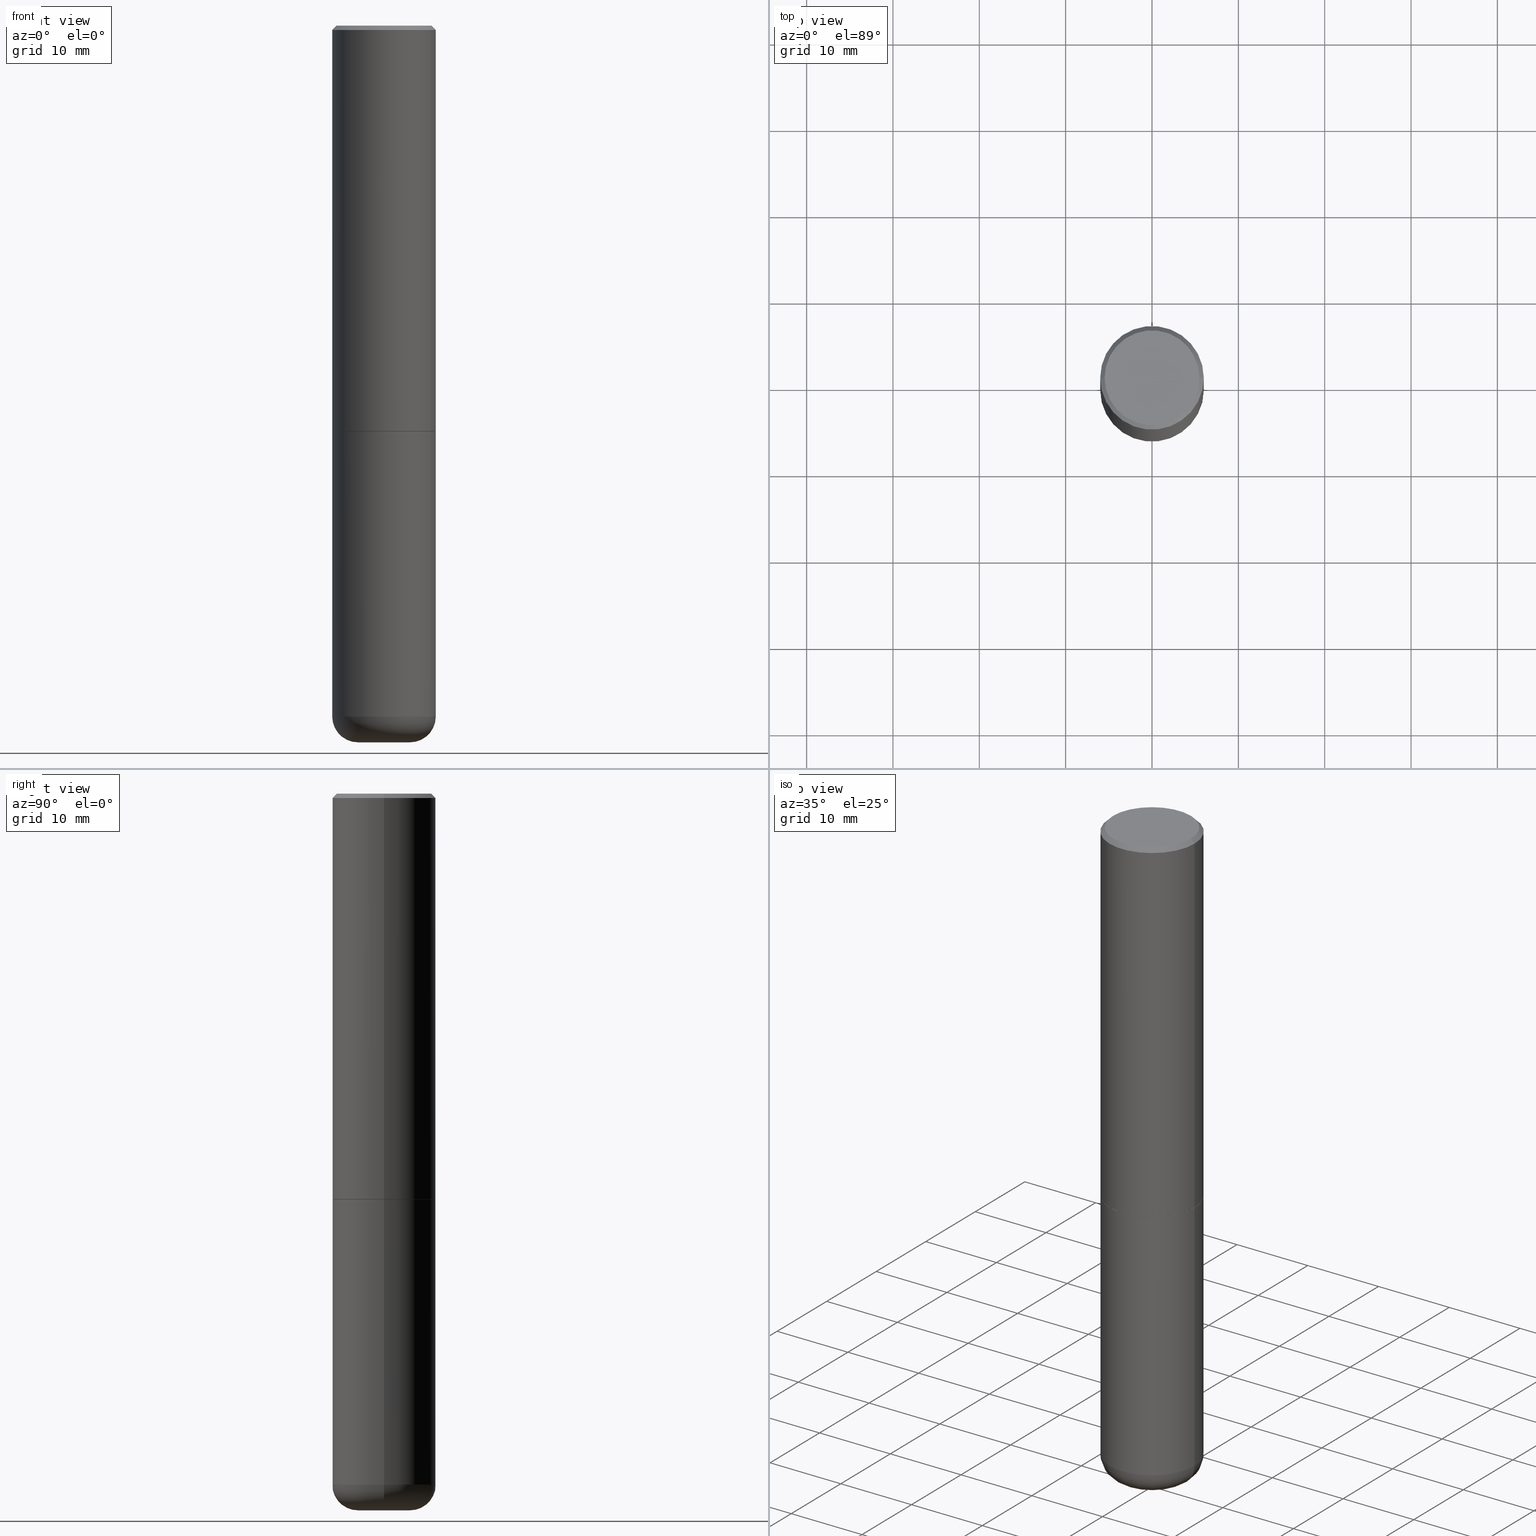
[diagram: canonical four-view strip — front | top / right | iso, engineering-drawing reading convention]
A machine part, canonical four-view strip (front | top / right | iso — engineering-drawing reading convention). The complete STEP part file that produces these views, byte-faithful:
ISO-10303-21;
HEADER;
FILE_DESCRIPTION (( 'STEP AP203' ),
    '1' );
FILE_NAME ('74614.STEP',
    '2024-03-06T15:40:44',
    ( '' ),
    ( '' ),
    'SwSTEP 2.0',
    'SolidWorks 2023',
    '' );
FILE_SCHEMA (( 'CONFIG_CONTROL_DESIGN' ));
ENDSEC;

DATA;
#1 = PERSON_AND_ORGANIZATION ( #302, #59 ) ;
#2 = DIRECTION ( 'NONE',  ( -2.445468806185136877E-29, 3.491481338843145188E-15, 1.000000000000000000 ) ) ;
#3 = CIRCLE ( 'NONE', #224, 0.2361999999999999655 ) ;
#4 = PERSON_AND_ORGANIZATION ( #302, #59 ) ;
#5 = DIRECTION ( 'NONE',  ( 1.000000000000000000, -6.982962677686265922E-15, 4.876176775795935793E-29 ) ) ;
#6 = CC_DESIGN_DATE_AND_TIME_ASSIGNMENT ( #110, #107, ( #254 ) ) ;
#7 = DIRECTION ( 'NONE',  ( -2.445468806185136597E-29, 3.491481338843145583E-15, 1.000000000000000000 ) ) ;
#8 = CARTESIAN_POINT ( 'NONE',  ( -0.2362000000000000766, 1.678301941865357183E-15, -1.161852468318209177E-29 ) ) ;
#9 = ORIENTED_EDGE ( 'NONE', *, *, #220, .T. ) ;
#10 = DIRECTION ( 'NONE',  ( -2.445468806185136597E-29, 3.491481338843145583E-15, 1.000000000000000000 ) ) ;
#11 = SHAPE_DEFINITION_REPRESENTATION ( #369, #292 ) ;
#12 = EDGE_CURVE ( 'NONE', #249, #218, #371, .T. ) ;
#13 = AXIS2_PLACEMENT_3D ( 'NONE', #237, #139, #263 ) ;
#14 = EDGE_CURVE ( 'NONE', #158, #411, #153, .T. ) ;
#15 = UNCERTAINTY_MEASURE_WITH_UNIT (LENGTH_MEASURE( 1.000000000000000082E-05 ), #131, 'distance_accuracy_value', 'NONE');
#16 = AXIS2_PLACEMENT_3D ( 'NONE', #246, #193, #321 ) ;
#17 = CC_DESIGN_APPROVAL ( #370, ( #333 ) ) ;
#18 = APPROVAL_PERSON_ORGANIZATION ( #77, #309, #44 ) ;
#19 = EDGE_CURVE ( 'NONE', #411, #158, #147, .T. ) ;
#20 = DIRECTION ( 'NONE',  ( 1.000000000000000000, -6.982962677686266711E-15, 4.876176775795935793E-29 ) ) ;
#21 = LINE ( 'NONE', #400, #85 ) ;
#22 = EDGE_LOOP ( 'NONE', ( #97, #28, #58, #245 ) ) ;
#23 = DIRECTION ( 'NONE',  ( 0.7071067811865459074, -7.319954787623251312E-15, -0.7071067811865492381 ) ) ;
#24 = ORIENTED_EDGE ( 'NONE', *, *, #52, .F. ) ;
#25 = AXIS2_PLACEMENT_3D ( 'NONE', #45, #238, #197 ) ;
#26 = AXIS2_PLACEMENT_3D ( 'NONE', #389, #230, #42 ) ;
#27 = CIRCLE ( 'NONE', #365, 0.2361999999999999933 ) ;
#28 = ORIENTED_EDGE ( 'NONE', *, *, #215, .T. ) ;
#29 = CARTESIAN_POINT ( 'NONE',  ( 0.2162000000000001143, -1.586759460484352382E-15, -1.408609121733027408E-16 ) ) ;
#30 = VERTEX_POINT ( 'NONE', #416 ) ;
#31 = ADVANCED_FACE ( 'NONE', ( #33 ), #413, .T. ) ;
#32 = COORDINATED_UNIVERSAL_TIME_OFFSET ( 5, 0, .BEHIND. ) ;
#33 = FACE_OUTER_BOUND ( 'NONE', #22, .T. ) ;
#34 = DIRECTION ( 'NONE',  ( 1.000000000000000000, -6.982962677686272233E-15, 0.000000000000000000 ) ) ;
#35 = PERSON_AND_ORGANIZATION_ROLE ( 'design_owner' ) ;
#36 = PLANE ( 'NONE',  #258 ) ;
#37 = PERSON_AND_ORGANIZATION_ROLE ( 'design_supplier' ) ;
#38 = FACE_OUTER_BOUND ( 'NONE', #185, .T. ) ;
#39 = ORIENTED_EDGE ( 'NONE', *, *, #156, .F. ) ;
#40 = AXIS2_PLACEMENT_3D ( 'NONE', #306, #54, #20 ) ;
#41 = DESIGN_CONTEXT ( 'detailed design', #313, 'design' ) ;
#42 = DIRECTION ( 'NONE',  ( 1.000000000000000000, -6.982962677686265133E-15, 0.000000000000000000 ) ) ;
#43 = VERTEX_POINT ( 'NONE', #226 ) ;
#44 = APPROVAL_ROLE ( '' ) ;
#45 = CARTESIAN_POINT ( 'NONE',  ( 7.991058417971171713E-29, -1.140911357093774644E-14, -3.267700000000000049 ) ) ;
#46 = CONICAL_SURFACE ( 'NONE', #204, 0.2361999999999999655, 0.7853981633974459475 ) ;
#47 = APPROVAL ( #417, 'UNSPECIFIED' ) ;
#48 = CARTESIAN_POINT ( 'NONE',  ( 0.000000000000000000, 0.000000000000000000, 0.000000000000000000 ) ) ;
#49 = EDGE_LOOP ( 'NONE', ( #119, #296, #9, #73 ) ) ;
#50 = AXIS2_PLACEMENT_3D ( 'NONE', #319, #114, #282 ) ;
#51 = FACE_OUTER_BOUND ( 'NONE', #261, .T. ) ;
#52 = EDGE_CURVE ( 'NONE', #303, #269, #56, .T. ) ;
#53 = VERTEX_POINT ( 'NONE', #192 ) ;
#54 = DIRECTION ( 'NONE',  ( -2.445468806185136597E-29, 3.491481338843145583E-15, 1.000000000000000000 ) ) ;
#55 = ORIENTED_EDGE ( 'NONE', *, *, #176, .T. ) ;
#56 = LINE ( 'NONE', #351, #74 ) ;
#57 = CYLINDRICAL_SURFACE ( 'NONE', #40, 0.2362000000000000766 ) ;
#58 = ORIENTED_EDGE ( 'NONE', *, *, #86, .F. ) ;
#59 = ORGANIZATION ( 'UNSPECIFIED', 'UNSPECIFIED', '' ) ;
#60 = ORIENTED_EDGE ( 'NONE', *, *, #250, .T. ) ;
#61 = DIRECTION ( 'NONE',  ( 0.7071067811864992780, -2.468850131081751401E-15, 0.7071067811865957564 ) ) ;
#62 = CC_DESIGN_PERSON_AND_ORGANIZATION_ASSIGNMENT ( #1, #135, ( #333 ) ) ;
#63 =( NAMED_UNIT ( * ) SI_UNIT ( $, .STERADIAN. ) SOLID_ANGLE_UNIT ( ) );
#64 = DIRECTION ( 'NONE',  ( -2.445468806185136597E-29, 3.491481338843145583E-15, 1.000000000000000000 ) ) ;
#65 = CLOSED_SHELL ( 'NONE', ( #307, #346, #368, #90, #328, #163, #199, #273 ) ) ;
#66 =( GEOMETRIC_REPRESENTATION_CONTEXT ( 3 ) GLOBAL_UNCERTAINTY_ASSIGNED_CONTEXT ( ( #15 ) ) GLOBAL_UNIT_ASSIGNED_CONTEXT ( ( #131, #386, #63 ) ) REPRESENTATION_CONTEXT ( 'NONE', 'WORKASPACE' ) );
#67 = CALENDAR_DATE ( 2024, 6, 3 ) ;
#68 = PLANE ( 'NONE',  #25 ) ;
#69 = ADVANCED_FACE ( 'NONE', ( #288 ), #99, .T. ) ;
#70 = FACE_OUTER_BOUND ( 'NONE', #350, .T. ) ;
#71 = CARTESIAN_POINT ( 'NONE',  ( -0.2162000000000001143, 1.544631344304201972E-15, -1.408609121733242372E-16 ) ) ;
#72 = DIMENSIONAL_EXPONENTS ( 1.000000000000000000, 0.000000000000000000, 0.000000000000000000, 0.000000000000000000, 0.000000000000000000, 0.000000000000000000, 0.000000000000000000 ) ;
#73 = ORIENTED_EDGE ( 'NONE', *, *, #14, .F. ) ;
#74 = VECTOR ( 'NONE', #61, 39.37007874015748143 ) ;
#75 = AXIS2_PLACEMENT_3D ( 'NONE', #334, #10, #166 ) ;
#76 = FACE_OUTER_BOUND ( 'NONE', #314, .T. ) ;
#77 = PERSON_AND_ORGANIZATION ( #302, #59 ) ;
#78 = EDGE_CURVE ( 'NONE', #167, #303, #208, .T. ) ;
#79 = CIRCLE ( 'NONE', #212, 0.1181000000000000105 ) ;
#80 = CIRCLE ( 'NONE', #397, 0.2362000000000002153 ) ;
#81 = CC_DESIGN_PERSON_AND_ORGANIZATION_ASSIGNMENT ( #284, #287, ( #210 ) ) ;
#82 = PRODUCT ( '74614', '74614', '', ( #202 ) ) ;
#83 = CARTESIAN_POINT ( 'NONE',  ( 4.890937612370295054E-31, -6.982962677686322424E-17, -0.02000000000000009062 ) ) ;
#84 = CARTESIAN_POINT ( 'NONE',  ( 4.890937612370295054E-31, -6.982962677686322424E-17, -0.02000000000000009062 ) ) ;
#85 = VECTOR ( 'NONE', #23, 39.37007874015748143 ) ;
#86 = EDGE_CURVE ( 'NONE', #30, #53, #211, .T. ) ;
#87 = CARTESIAN_POINT ( 'NONE',  ( -0.2351999999999999924, -4.789440554887602979E-15, -1.850400000000000489 ) ) ;
#88 = ORIENTED_EDGE ( 'NONE', *, *, #156, .T. ) ;
#89 = VERTEX_POINT ( 'NONE', #297 ) ;
#90 = ADVANCED_FACE ( 'NONE', ( #143 ), #322, .T. ) ;
#91 = DIRECTION ( 'NONE',  ( 1.000000000000000000, -6.982962677686266711E-15, 0.000000000000000000 ) ) ;
#92 = ORIENTED_EDGE ( 'NONE', *, *, #12, .F. ) ;
#93 = ORIENTED_EDGE ( 'NONE', *, *, #14, .T. ) ;
#94 = AXIS2_PLACEMENT_3D ( 'NONE', #118, #248, #91 ) ;
#95 = ORIENTED_EDGE ( 'NONE', *, *, #356, .T. ) ;
#96 = APPROVAL_STATUS ( 'not_yet_approved' ) ;
#97 = ORIENTED_EDGE ( 'NONE', *, *, #182, .T. ) ;
#98 = APPROVAL_ROLE ( '' ) ;
#99 = CYLINDRICAL_SURFACE ( 'NONE', #304, 0.2361999999999999933 ) ;
#100 = ORIENTED_EDGE ( 'NONE', *, *, #182, .F. ) ;
#101 = VECTOR ( 'NONE', #375, 39.37007874015748143 ) ;
#102 = DIRECTION ( 'NONE',  ( -2.445468806185136877E-29, 3.491481338843145188E-15, 1.000000000000000000 ) ) ;
#103 = ORIENTED_EDGE ( 'NONE', *, *, #86, .T. ) ;
#104 = DIRECTION ( 'NONE',  ( -2.445468806185136597E-29, 3.491481338843145583E-15, 1.000000000000000000 ) ) ;
#105 = DIRECTION ( 'NONE',  ( 2.445468806185136597E-29, -3.491481338843145583E-15, -1.000000000000000000 ) ) ;
#106 = AXIS2_PLACEMENT_3D ( 'NONE', #159, #251, #190 ) ;
#107 = DATE_TIME_ROLE ( 'classification_date' ) ;
#108 = DIRECTION ( 'NONE',  ( 2.438088387897960049E-29, -3.491481338843145188E-15, -1.000000000000000000 ) ) ;
#109 = ORIENTED_EDGE ( 'NONE', *, *, #243, .T. ) ;
#110 = DATE_AND_TIME ( #141, #146 ) ;
#111 = ORIENTED_EDGE ( 'NONE', *, *, #215, .F. ) ;
#112 = CARTESIAN_POINT ( 'NONE',  ( 0.2362000000000002153, -8.106521372526011094E-15, -1.849400000000000155 ) ) ;
#113 = ADVANCED_FACE ( 'NONE', ( #38 ), #68, .T. ) ;
#114 = DIRECTION ( 'NONE',  ( -2.445468806185136597E-29, 3.491481338843145583E-15, 1.000000000000000000 ) ) ;
#115 = AXIS2_PLACEMENT_3D ( 'NONE', #281, #274, #402 ) ;
#116 = ORIENTED_EDGE ( 'NONE', *, *, #339, .T. ) ;
#117 = CONICAL_SURFACE ( 'NONE', #50, 0.2351999999999999924, 0.7853981633973801113 ) ;
#118 = CARTESIAN_POINT ( 'NONE',  ( 4.522650010158792351E-29, -6.457145588056513780E-15, -1.849400000000000155 ) ) ;
#119 = ORIENTED_EDGE ( 'NONE', *, *, #356, .F. ) ;
#120 = DIRECTION ( 'NONE',  ( -2.445468806185136597E-29, 3.491481338843145583E-15, 1.000000000000000000 ) ) ;
#121 = CARTESIAN_POINT ( 'NONE',  ( 0.2361999999999999655, -1.690279253850498771E-15, -0.02000000000000009062 ) ) ;
#122 = ORIENTED_EDGE ( 'NONE', *, *, #366, .F. ) ;
#123 = VERTEX_POINT ( 'NONE', #329 ) ;
#124 = DIRECTION ( 'NONE',  ( 1.000000000000000000, -6.982962677686266711E-15, 4.876176775795936353E-29 ) ) ;
#125 = CARTESIAN_POINT ( 'NONE',  ( 0.1180999999999999966, -1.182145751705512057E-14, -3.149600000000000399 ) ) ;
#126 = AXIS2_PLACEMENT_3D ( 'NONE', #217, #349, #180 ) ;
#127 = ADVANCED_FACE ( 'NONE', ( #70 ), #36, .F. ) ;
#128 = CARTESIAN_POINT ( 'NONE',  ( 0.2361999999999999933, -8.110012853864854101E-15, -1.850400000000000267 ) ) ;
#129 = CARTESIAN_POINT ( 'NONE',  ( 7.702248551960706711E-29, -1.099676962482037231E-14, -3.149600000000000399 ) ) ;
#130 = EDGE_CURVE ( 'NONE', #123, #277, #3, .T. ) ;
#131 =( CONVERSION_BASED_UNIT ( 'INCH', #327 ) LENGTH_UNIT ( ) NAMED_UNIT ( #72 ) );
#132 = EDGE_CURVE ( 'NONE', #303, #167, #187, .T. ) ;
#133 = DIRECTION ( 'NONE',  ( -2.445468806185136597E-29, 3.491481338843145583E-15, 1.000000000000000000 ) ) ;
#134 = CC_DESIGN_PERSON_AND_ORGANIZATION_ASSIGNMENT ( #332, #138, ( #254 ) ) ;
#135 = PERSON_AND_ORGANIZATION_ROLE ( 'creator' ) ;
#136 = DIRECTION ( 'NONE',  ( 1.000000000000000000, -6.982962677686268288E-15, 0.000000000000000000 ) ) ;
#137 = ORIENTED_EDGE ( 'NONE', *, *, #19, .T. ) ;
#138 = PERSON_AND_ORGANIZATION_ROLE ( 'classification_officer' ) ;
#139 = DIRECTION ( 'NONE',  ( 7.105427357601001859E-15, 1.000000000000000000, -3.491481338843145583E-15 ) ) ;
#140 = FACE_OUTER_BOUND ( 'NONE', #286, .T. ) ;
#141 = CALENDAR_DATE ( 2024, 6, 3 ) ;
#142 = PRODUCT_RELATED_PRODUCT_CATEGORY ( 'detail', '', ( #82 ) ) ;
#143 = FACE_OUTER_BOUND ( 'NONE', #234, .T. ) ;
#144 = AXIS2_PLACEMENT_3D ( 'NONE', #355, #105, #299 ) ;
#145 = AXIS2_PLACEMENT_3D ( 'NONE', #183, #317, #278 ) ;
#146 = LOCAL_TIME ( 10, 40, 44.00000000000000000, #293 ) ;
#147 = CIRCLE ( 'NONE', #253, 0.2361999999999999933 ) ;
#148 = AXIS2_PLACEMENT_3D ( 'NONE', #362, #200, #5 ) ;
#149 = CARTESIAN_POINT ( 'NONE',  ( 0.2351999999999999924, -8.103029891187169665E-15, -1.850400000000000489 ) ) ;
#150 = FACE_OUTER_BOUND ( 'NONE', #318, .T. ) ;
#151 = EDGE_LOOP ( 'NONE', ( #103, #95, #188, #405 ) ) ;
#152 = CARTESIAN_POINT ( 'NONE',  ( 7.702248551960706711E-29, -1.099676962482037231E-14, -3.149600000000000399 ) ) ;
#153 = CIRCLE ( 'NONE', #115, 0.2361999999999999933 ) ;
#154 = EDGE_LOOP ( 'NONE', ( #222, #55, #310, #39 ) ) ;
#155 = CIRCLE ( 'NONE', #178, 0.1181000000000000105 ) ;
#156 = EDGE_CURVE ( 'NONE', #269, #277, #291, .T. ) ;
#157 = CARTESIAN_POINT ( 'NONE',  ( 4.522650010158792351E-29, -6.457145588056513780E-15, -1.849400000000000155 ) ) ;
#158 = VERTEX_POINT ( 'NONE', #394 ) ;
#159 = CARTESIAN_POINT ( 'NONE',  ( 1.509716530915771507E-15, 0.2162000000000001143, -8.252887215445451602E-16 ) ) ;
#160 = DATE_AND_TIME ( #67, #393 ) ;
#161 = CC_DESIGN_APPROVAL ( #47, ( #210 ) ) ;
#162 = APPLICATION_PROTOCOL_DEFINITION ( 'international standard', 'config_control_design', 1994, #279 ) ;
#163 = ADVANCED_FACE ( 'NONE', ( #140 ), #388, .T. ) ;
#164 = DIRECTION ( 'NONE',  ( -1.000000000000000000, 6.982962677686265922E-15, -4.876176775795935793E-29 ) ) ;
#165 = APPROVAL_DATE_TIME ( #323, #370 ) ;
#166 = DIRECTION ( 'NONE',  ( 1.000000000000000000, -6.982962677686268288E-15, 0.000000000000000000 ) ) ;
#167 = VERTEX_POINT ( 'NONE', #295 ) ;
#168 = APPLICATION_PROTOCOL_DEFINITION ( 'international standard', 'config_control_design', 1994, #313 ) ;
#169 = DIRECTION ( 'NONE',  ( 1.000000000000000000, -6.982962677686266711E-15, 4.876176775795936353E-29 ) ) ;
#170 = APPROVAL_PERSON_ORGANIZATION ( #4, #47, #353 ) ;
#171 = ORIENTED_EDGE ( 'NONE', *, *, #409, .F. ) ;
#172 = DIRECTION ( 'NONE',  ( 1.000000000000000000, -6.982962677686266711E-15, 0.000000000000000000 ) ) ;
#173 = ORIENTED_EDGE ( 'NONE', *, *, #374, .F. ) ;
#174 = CALENDAR_DATE ( 2024, 6, 3 ) ;
#175 = CARTESIAN_POINT ( 'NONE',  ( 0.2362000000000000766, -1.649375784469496722E-15, 1.151752954443000368E-29 ) ) ;
#176 = EDGE_CURVE ( 'NONE', #272, #123, #259, .T. ) ;
#177 = DIRECTION ( 'NONE',  ( -6.982962677686266711E-15, -1.000000000000000000, 3.491481338843145583E-15 ) ) ;
#178 = AXIS2_PLACEMENT_3D ( 'NONE', #233, #265, #195 ) ;
#179 = AXIS2_PLACEMENT_3D ( 'NONE', #125, #177, #360 ) ;
#180 = DIRECTION ( 'NONE',  ( 1.000000000000000000, -6.982962677686266711E-15, 4.876176775795935793E-29 ) ) ;
#181 = LOCAL_TIME ( 10, 40, 44.00000000000000000, #240 ) ;
#182 = EDGE_CURVE ( 'NONE', #89, #43, #155, .T. ) ;
#183 = CARTESIAN_POINT ( 'NONE',  ( 7.702248551960706711E-29, -1.099676962482037231E-14, -3.149600000000000399 ) ) ;
#184 = CARTESIAN_POINT ( 'NONE',  ( -0.2361999999999999933, 1.678301941865356591E-15, -1.161852468318208757E-29 ) ) ;
#185 = EDGE_LOOP ( 'NONE', ( #100, #315 ) ) ;
#186 = DIRECTION ( 'NONE',  ( -2.445468806185136597E-29, 3.491481338843145583E-15, 1.000000000000000000 ) ) ;
#187 = CIRCLE ( 'NONE', #75, 0.2351999999999999924 ) ;
#188 = ORIENTED_EDGE ( 'NONE', *, *, #19, .F. ) ;
#189 = ORIENTED_EDGE ( 'NONE', *, *, #132, .F. ) ;
#190 = DIRECTION ( 'NONE',  ( -1.000000000000000000, 6.982962677686265922E-15, -4.876176775795935793E-29 ) ) ;
#191 = ORIENTED_EDGE ( 'NONE', *, *, #132, .T. ) ;
#192 = CARTESIAN_POINT ( 'NONE',  ( -0.2361999999999999933, -9.318467682955017493E-15, -3.149600000000000399 ) ) ;
#193 = DIRECTION ( 'NONE',  ( -2.445468806185136597E-29, 3.491481338843145583E-15, 1.000000000000000000 ) ) ;
#194 = COORDINATED_UNIVERSAL_TIME_OFFSET ( 5, 0, .BEHIND. ) ;
#195 = DIRECTION ( 'NONE',  ( 1.000000000000000000, -6.982962677686272233E-15, 0.000000000000000000 ) ) ;
#196 = CALENDAR_DATE ( 2024, 6, 3 ) ;
#197 = DIRECTION ( 'NONE',  ( -1.000000000000000000, 6.982962677686265922E-15, -4.876176775795935793E-29 ) ) ;
#198 = CARTESIAN_POINT ( 'NONE',  ( 0.000000000000000000, 0.000000000000000000, 0.000000000000000000 ) ) ;
#199 = ADVANCED_FACE ( 'NONE', ( #76 ), #257, .F. ) ;
#200 = DIRECTION ( 'NONE',  ( -2.438088387897960049E-29, 3.491481338843145188E-15, 1.000000000000000000 ) ) ;
#201 = ORIENTED_EDGE ( 'NONE', *, *, #78, .F. ) ;
#202 = MECHANICAL_CONTEXT ( 'NONE', #279, 'mechanical' ) ;
#203 = LINE ( 'NONE', #264, #414 ) ;
#204 = AXIS2_PLACEMENT_3D ( 'NONE', #84, #213, #308 ) ;
#205 = EDGE_CURVE ( 'NONE', #43, #89, #79, .T. ) ;
#206 = CARTESIAN_POINT ( 'NONE',  ( 7.991058417971171713E-29, -1.140911357093774644E-14, -3.267700000000000049 ) ) ;
#207 = APPROVAL_STATUS ( 'not_yet_approved' ) ;
#208 = CIRCLE ( 'NONE', #283, 0.2351999999999999924 ) ;
#209 = FACE_OUTER_BOUND ( 'NONE', #154, .T. ) ;
#210 = PRODUCT_DEFINITION ( 'UNKNOWN', '', #333, #41 ) ;
#211 = CIRCLE ( 'NONE', #26, 0.2361999999999999933 ) ;
#212 = AXIS2_PLACEMENT_3D ( 'NONE', #206, #64, #34 ) ;
#213 = DIRECTION ( 'NONE',  ( 2.445468806185136597E-29, -3.491481338843145583E-15, -1.000000000000000000 ) ) ;
#214 = CC_DESIGN_APPROVAL ( #309, ( #254 ) ) ;
#215 = EDGE_CURVE ( 'NONE', #43, #53, #372, .T. ) ;
#216 = FACE_OUTER_BOUND ( 'NONE', #390, .T. ) ;
#217 = CARTESIAN_POINT ( 'NONE',  ( 0.000000000000000000, 0.000000000000000000, 0.000000000000000000 ) ) ;
#218 = VERTEX_POINT ( 'NONE', #71 ) ;
#219 = CARTESIAN_POINT ( 'NONE',  ( 4.525095478964977394E-29, -6.460637069395357576E-15, -1.850400000000000267 ) ) ;
#220 = EDGE_CURVE ( 'NONE', #30, #411, #203, .T. ) ;
#221 = FACE_OUTER_BOUND ( 'NONE', #383, .T. ) ;
#222 = ORIENTED_EDGE ( 'NONE', *, *, #395, .T. ) ;
#223 = CYLINDRICAL_SURFACE ( 'NONE', #126, 0.2362000000000000766 ) ;
#224 = AXIS2_PLACEMENT_3D ( 'NONE', #392, #104, #172 ) ;
#225 = EDGE_LOOP ( 'NONE', ( #343, #381, #88, #347 ) ) ;
#226 = CARTESIAN_POINT ( 'NONE',  ( -0.1181000000000000383, -9.944215141480041685E-15, -3.267700000000000049 ) ) ;
#227 = PERSON_AND_ORGANIZATION ( #302, #59 ) ;
#228 = ORIENTED_EDGE ( 'NONE', *, *, #379, .F. ) ;
#229 = APPROVAL_DATE_TIME ( #160, #47 ) ;
#230 = DIRECTION ( 'NONE',  ( -2.445468806185136597E-29, 3.491481338843145583E-15, 1.000000000000000000 ) ) ;
#231 = CIRCLE ( 'NONE', #179, 0.1180999999999999966 ) ;
#232 = PERSON_AND_ORGANIZATION ( #302, #59 ) ;
#233 = CARTESIAN_POINT ( 'NONE',  ( 7.991058417971171713E-29, -1.140911357093774644E-14, -3.267700000000000049 ) ) ;
#234 = EDGE_LOOP ( 'NONE', ( #173, #171, #354, #407 ) ) ;
#235 = SECURITY_CLASSIFICATION_LEVEL ( 'unclassified' ) ;
#236 = CC_DESIGN_PERSON_AND_ORGANIZATION_ASSIGNMENT ( #227, #35, ( #82 ) ) ;
#237 = CARTESIAN_POINT ( 'NONE',  ( -0.1180999999999999966, -1.015761865388769332E-14, -3.149600000000000399 ) ) ;
#238 = DIRECTION ( 'NONE',  ( 2.438088387897960049E-29, -3.491481338843145188E-15, -1.000000000000000000 ) ) ;
#239 = CIRCLE ( 'NONE', #285, 0.2361999999999999655 ) ;
#240 = COORDINATED_UNIVERSAL_TIME_OFFSET ( 5, 0, .BEHIND. ) ;
#241 = CIRCLE ( 'NONE', #94, 0.2362000000000002153 ) ;
#242 = DIRECTION ( 'NONE',  ( -0.7071067811865459074, 2.468850131082239706E-15, -0.7071067811865492381 ) ) ;
#243 = EDGE_CURVE ( 'NONE', #89, #30, #231, .T. ) ;
#244 = DIRECTION ( 'NONE',  ( 1.000000000000000000, -6.982962677686266711E-15, 0.000000000000000000 ) ) ;
#245 = ORIENTED_EDGE ( 'NONE', *, *, #243, .F. ) ;
#246 = CARTESIAN_POINT ( 'NONE',  ( 3.444709667306225463E-45, -4.918132462255475514E-31, -1.408609121733135630E-16 ) ) ;
#247 = ADVANCED_FACE ( 'NONE', ( #216 ), #305, .T. ) ;
#248 = DIRECTION ( 'NONE',  ( -2.445468806185136597E-29, 3.491481338843145583E-15, 1.000000000000000000 ) ) ;
#249 = VERTEX_POINT ( 'NONE', #29 ) ;
#250 = EDGE_CURVE ( 'NONE', #277, #123, #239, .T. ) ;
#251 = DIRECTION ( 'NONE',  ( 2.438088387897960049E-29, -3.491481338843145188E-15, -1.000000000000000000 ) ) ;
#252 = ORIENTED_EDGE ( 'NONE', *, *, #52, .T. ) ;
#253 = AXIS2_PLACEMENT_3D ( 'NONE', #219, #120, #408 ) ;
#254 = SECURITY_CLASSIFICATION ( '', '', #235 ) ;
#255 = COORDINATED_UNIVERSAL_TIME_OFFSET ( 5, 0, .BEHIND. ) ;
#256 = CARTESIAN_POINT ( 'NONE',  ( 3.444709667306225463E-45, -4.918132462255475514E-31, -1.408609121733135630E-16 ) ) ;
#257 = PLANE ( 'NONE',  #148 ) ;
#258 = AXIS2_PLACEMENT_3D ( 'NONE', #391, #108, #164 ) ;
#259 = LINE ( 'NONE', #8, #376 ) ;
#260 = LOCAL_TIME ( 10, 40, 44.00000000000000000, #194 ) ;
#261 = EDGE_LOOP ( 'NONE', ( #92, #320, #60, #122 ) ) ;
#262 = DIRECTION ( 'NONE',  ( 1.000000000000000000, 0.000000000000000000, 0.000000000000000000 ) ) ;
#263 = DIRECTION ( 'NONE',  ( -1.000000000000000000, 7.105427357601005014E-15, 0.000000000000000000 ) ) ;
#264 = CARTESIAN_POINT ( 'NONE',  ( 0.2361999999999999933, -1.649375784469496131E-15, 1.151752954443000088E-29 ) ) ;
#265 = DIRECTION ( 'NONE',  ( -2.445468806185136597E-29, 3.491481338843145583E-15, 1.000000000000000000 ) ) ;
#266 = VECTOR ( 'NONE', #2, 39.37007874015748143 ) ;
#267 = EDGE_CURVE ( 'NONE', #272, #269, #80, .T. ) ;
#268 = AXIS2_PLACEMENT_3D ( 'NONE', #48, #186, #124 ) ;
#269 = VERTEX_POINT ( 'NONE', #112 ) ;
#270 = CARTESIAN_POINT ( 'NONE',  ( -0.2361999999999999655, 1.579546157692632635E-15, -0.02000000000000009062 ) ) ;
#271 = DIRECTION ( 'NONE',  ( -2.445468806185136597E-29, 3.491481338843145583E-15, 1.000000000000000000 ) ) ;
#272 = VERTEX_POINT ( 'NONE', #380 ) ;
#273 = ADVANCED_FACE ( 'NONE', ( #221 ), #406, .F. ) ;
#274 = DIRECTION ( 'NONE',  ( -2.445468806185136597E-29, 3.491481338843145583E-15, 1.000000000000000000 ) ) ;
#275 = AXIS2_PLACEMENT_3D ( 'NONE', #198, #358, #262 ) ;
#276 = DIRECTION ( 'NONE',  ( -2.445468806185136597E-29, 3.491481338843145583E-15, 1.000000000000000000 ) ) ;
#277 = VERTEX_POINT ( 'NONE', #121 ) ;
#278 = DIRECTION ( 'NONE',  ( 1.000000000000000000, -6.982962677686264344E-15, 4.883557194083111780E-29 ) ) ;
#279 = APPLICATION_CONTEXT ( 'configuration controlled 3d designs of mechanical parts and assemblies' ) ;
#280 = ORIENTED_EDGE ( 'NONE', *, *, #78, .T. ) ;
#281 = CARTESIAN_POINT ( 'NONE',  ( 4.525095478964977394E-29, -6.460637069395357576E-15, -1.850400000000000267 ) ) ;
#282 = DIRECTION ( 'NONE',  ( 1.000000000000000000, -6.982962677686268288E-15, 0.000000000000000000 ) ) ;
#283 = AXIS2_PLACEMENT_3D ( 'NONE', #359, #364, #326 ) ;
#284 = PERSON_AND_ORGANIZATION ( #302, #59 ) ;
#285 = AXIS2_PLACEMENT_3D ( 'NONE', #83, #399, #244 ) ;
#286 = EDGE_LOOP ( 'NONE', ( #331, #280, #252, #311 ) ) ;
#287 = PERSON_AND_ORGANIZATION_ROLE ( 'creator' ) ;
#288 = FACE_OUTER_BOUND ( 'NONE', #49, .T. ) ;
#289 = ORIENTED_EDGE ( 'NONE', *, *, #409, .T. ) ;
#290 = DATE_AND_TIME ( #387, #338 ) ;
#291 = LINE ( 'NONE', #175, #266 ) ;
#292 = ADVANCED_BREP_SHAPE_REPRESENTATION ( '74614', ( #412, #396, #275 ), #66 ) ;
#293 = COORDINATED_UNIVERSAL_TIME_OFFSET ( 5, 0, .BEHIND. ) ;
#294 = AXIS2_PLACEMENT_3D ( 'NONE', #367, #133, #136 ) ;
#295 = CARTESIAN_POINT ( 'NONE',  ( -0.2351999999999999924, -4.784142100539378999E-15, -1.850400000000000489 ) ) ;
#296 = ORIENTED_EDGE ( 'NONE', *, *, #379, .T. ) ;
#297 = CARTESIAN_POINT ( 'NONE',  ( 0.1181000000000000105, -1.223380146317249628E-14, -3.267700000000000049 ) ) ;
#298 = DATE_AND_TIME ( #174, #181 ) ;
#299 = DIRECTION ( 'NONE',  ( -1.000000000000000000, 6.982962677686266711E-15, 0.000000000000000000 ) ) ;
#300 = CLOSED_SHELL ( 'NONE', ( #336, #31, #127, #69, #247, #113 ) ) ;
#301 = APPROVAL_PERSON_ORGANIZATION ( #384, #370, #98 ) ;
#302 = PERSON ( 'UNSPECIFIED', 'UNSPECIFIED', 'UNSPECIFIED', ('UNSPECIFIED'), ('UNSPECIFIED'), ('UNSPECIFIED') ) ;
#303 = VERTEX_POINT ( 'NONE', #149 ) ;
#304 = AXIS2_PLACEMENT_3D ( 'NONE', #330, #418, #169 ) ;
#305 = TOROIDAL_SURFACE ( 'NONE', #145, 0.1180999999999999966, 0.1181000000000000105 ) ;
#306 = CARTESIAN_POINT ( 'NONE',  ( 0.000000000000000000, 0.000000000000000000, 0.000000000000000000 ) ) ;
#307 = ADVANCED_FACE ( 'NONE', ( #150 ), #117, .T. ) ;
#308 = DIRECTION ( 'NONE',  ( -1.000000000000000000, 6.982962677686266711E-15, 0.000000000000000000 ) ) ;
#309 = APPROVAL ( #207, 'UNSPECIFIED' ) ;
#310 = ORIENTED_EDGE ( 'NONE', *, *, #250, .F. ) ;
#311 = ORIENTED_EDGE ( 'NONE', *, *, #267, .F. ) ;
#312 = LINE ( 'NONE', #270, #348 ) ;
#313 = APPLICATION_CONTEXT ( 'configuration controlled 3d designs of mechanical parts and assemblies' ) ;
#314 = EDGE_LOOP ( 'NONE', ( #189, #201 ) ) ;
#315 = ORIENTED_EDGE ( 'NONE', *, *, #205, .F. ) ;
#316 = AXIS2_PLACEMENT_3D ( 'NONE', #256, #7, #363 ) ;
#317 = DIRECTION ( 'NONE',  ( -2.445468806185136597E-29, 3.491481338843145583E-15, 1.000000000000000000 ) ) ;
#318 = EDGE_LOOP ( 'NONE', ( #191, #116, #377, #24 ) ) ;
#319 = CARTESIAN_POINT ( 'NONE',  ( 4.525095478964977954E-29, -6.460637069395358365E-15, -1.850400000000000489 ) ) ;
#320 = ORIENTED_EDGE ( 'NONE', *, *, #374, .T. ) ;
#321 = DIRECTION ( 'NONE',  ( 1.000000000000000000, -6.982962677686266711E-15, 4.881916136609859212E-29 ) ) ;
#322 = CONICAL_SURFACE ( 'NONE', #144, 0.2361999999999999655, 0.7853981633974459475 ) ;
#323 = DATE_AND_TIME ( #196, #260 ) ;
#324 = CIRCLE ( 'NONE', #316, 0.2162000000000001143 ) ;
#325 = CC_DESIGN_SECURITY_CLASSIFICATION ( #254, ( #333 ) ) ;
#326 = DIRECTION ( 'NONE',  ( 1.000000000000000000, -6.982962677686268288E-15, 0.000000000000000000 ) ) ;
#327 = LENGTH_MEASURE_WITH_UNIT ( LENGTH_MEASURE( 0.02539999999999999897 ), #361 );
#328 = ADVANCED_FACE ( 'NONE', ( #410 ), #57, .T. ) ;
#329 = CARTESIAN_POINT ( 'NONE',  ( -0.2361999999999999655, 1.579546157692632635E-15, -0.02000000000000009062 ) ) ;
#330 = CARTESIAN_POINT ( 'NONE',  ( 0.000000000000000000, 0.000000000000000000, 0.000000000000000000 ) ) ;
#331 = ORIENTED_EDGE ( 'NONE', *, *, #339, .F. ) ;
#332 = PERSON_AND_ORGANIZATION ( #302, #59 ) ;
#333 = PRODUCT_DEFINITION_FORMATION_WITH_SPECIFIED_SOURCE ( 'ANY', '', #82, .NOT_KNOWN. ) ;
#334 = CARTESIAN_POINT ( 'NONE',  ( 4.525095478964977954E-29, -6.460637069395358365E-15, -1.850400000000000489 ) ) ;
#335 = DIRECTION ( 'NONE',  ( -2.445468806185136877E-29, 3.491481338843145188E-15, 1.000000000000000000 ) ) ;
#336 = ADVANCED_FACE ( 'NONE', ( #382 ), #341, .T. ) ;
#337 = APPROVAL_DATE_TIME ( #298, #309 ) ;
#338 = LOCAL_TIME ( 10, 40, 44.00000000000000000, #255 ) ;
#339 = EDGE_CURVE ( 'NONE', #167, #272, #373, .T. ) ;
#340 = LINE ( 'NONE', #184, #403 ) ;
#341 = CYLINDRICAL_SURFACE ( 'NONE', #268, 0.2361999999999999933 ) ;
#342 = DIRECTION ( 'NONE',  ( -2.445468806185136877E-29, 3.491481338843145188E-15, 1.000000000000000000 ) ) ;
#343 = ORIENTED_EDGE ( 'NONE', *, *, #176, .F. ) ;
#344 = DIRECTION ( 'NONE',  ( 1.000000000000000000, -6.982962677686264344E-15, 4.883557194083111780E-29 ) ) ;
#345 = DIRECTION ( 'NONE',  ( 1.000000000000000000, -6.982962677686266711E-15, 0.000000000000000000 ) ) ;
#346 = ADVANCED_FACE ( 'NONE', ( #209 ), #223, .T. ) ;
#347 = ORIENTED_EDGE ( 'NONE', *, *, #130, .F. ) ;
#348 = VECTOR ( 'NONE', #242, 39.37007874015748143 ) ;
#349 = DIRECTION ( 'NONE',  ( -2.445468806185136597E-29, 3.491481338843145583E-15, 1.000000000000000000 ) ) ;
#350 = EDGE_LOOP ( 'NONE', ( #137, #93 ) ) ;
#351 = CARTESIAN_POINT ( 'NONE',  ( 0.2351999999999999924, -8.103029891187169665E-15, -1.850400000000000489 ) ) ;
#352 = CC_DESIGN_DATE_AND_TIME_ASSIGNMENT ( #290, #415, ( #210 ) ) ;
#353 = APPROVAL_ROLE ( '' ) ;
#354 = ORIENTED_EDGE ( 'NONE', *, *, #366, .T. ) ;
#355 = CARTESIAN_POINT ( 'NONE',  ( 4.890937612370295054E-31, -6.982962677686322424E-17, -0.02000000000000009062 ) ) ;
#356 = EDGE_CURVE ( 'NONE', #53, #158, #340, .T. ) ;
#357 = AXIS2_PLACEMENT_3D ( 'NONE', #129, #378, #344 ) ;
#358 = DIRECTION ( 'NONE',  ( 0.000000000000000000, 0.000000000000000000, 1.000000000000000000 ) ) ;
#359 = CARTESIAN_POINT ( 'NONE',  ( 4.525095478964977954E-29, -6.460637069395358365E-15, -1.850400000000000489 ) ) ;
#360 = DIRECTION ( 'NONE',  ( 1.000000000000000000, -6.982962677686273021E-15, 0.000000000000000000 ) ) ;
#361 =( LENGTH_UNIT ( ) NAMED_UNIT ( * ) SI_UNIT ( $, .METRE. ) );
#362 = CARTESIAN_POINT ( 'NONE',  ( 4.525095478964977954E-29, -6.460637069395358365E-15, -1.850400000000000489 ) ) ;
#363 = DIRECTION ( 'NONE',  ( 1.000000000000000000, -6.982962677686266711E-15, 4.881916136609859212E-29 ) ) ;
#364 = DIRECTION ( 'NONE',  ( -2.445468806185136597E-29, 3.491481338843145583E-15, 1.000000000000000000 ) ) ;
#365 = AXIS2_PLACEMENT_3D ( 'NONE', #152, #276, #404 ) ;
#366 = EDGE_CURVE ( 'NONE', #218, #123, #312, .T. ) ;
#367 = CARTESIAN_POINT ( 'NONE',  ( 4.525095478964977954E-29, -6.460637069395358365E-15, -1.850400000000000489 ) ) ;
#368 = ADVANCED_FACE ( 'NONE', ( #51 ), #46, .T. ) ;
#369 = PRODUCT_DEFINITION_SHAPE ( 'NONE', 'NONE',  #210 ) ;
#370 = APPROVAL ( #96, 'UNSPECIFIED' ) ;
#371 = CIRCLE ( 'NONE', #16, 0.2162000000000001143 ) ;
#372 = CIRCLE ( 'NONE', #13, 0.1180999999999999966 ) ;
#373 = LINE ( 'NONE', #87, #101 ) ;
#374 = EDGE_CURVE ( 'NONE', #249, #277, #21, .T. ) ;
#375 = DIRECTION ( 'NONE',  ( -0.7071067811864992780, 7.493145998870180611E-15, 0.7071067811865957564 ) ) ;
#376 = VECTOR ( 'NONE', #102, 39.37007874015748143 ) ;
#377 = ORIENTED_EDGE ( 'NONE', *, *, #395, .F. ) ;
#378 = DIRECTION ( 'NONE',  ( -2.445468806185136597E-29, 3.491481338843145583E-15, 1.000000000000000000 ) ) ;
#379 = EDGE_CURVE ( 'NONE', #53, #30, #27, .T. ) ;
#380 = CARTESIAN_POINT ( 'NONE',  ( -0.2362000000000002431, -1.585185665551328595E-15, -1.849400000000000155 ) ) ;
#381 = ORIENTED_EDGE ( 'NONE', *, *, #267, .T. ) ;
#382 = FACE_OUTER_BOUND ( 'NONE', #151, .T. ) ;
#383 = EDGE_LOOP ( 'NONE', ( #289, #398 ) ) ;
#384 = PERSON_AND_ORGANIZATION ( #302, #59 ) ;
#385 = CC_DESIGN_PERSON_AND_ORGANIZATION_ASSIGNMENT ( #232, #37, ( #333 ) ) ;
#386 =( NAMED_UNIT ( * ) PLANE_ANGLE_UNIT ( ) SI_UNIT ( $, .RADIAN. ) );
#387 = CALENDAR_DATE ( 2024, 6, 3 ) ;
#388 = CONICAL_SURFACE ( 'NONE', #294, 0.2351999999999999924, 0.7853981633973801113 ) ;
#389 = CARTESIAN_POINT ( 'NONE',  ( 7.702248551960706711E-29, -1.099676962482037231E-14, -3.149600000000000399 ) ) ;
#390 = EDGE_LOOP ( 'NONE', ( #111, #401, #109, #228 ) ) ;
#391 = CARTESIAN_POINT ( 'NONE',  ( 4.525095478964977394E-29, -6.460637069395357576E-15, -1.850400000000000267 ) ) ;
#392 = CARTESIAN_POINT ( 'NONE',  ( 4.890937612370295054E-31, -6.982962677686322424E-17, -0.02000000000000009062 ) ) ;
#393 = LOCAL_TIME ( 10, 40, 44.00000000000000000, #32 ) ;
#394 = CARTESIAN_POINT ( 'NONE',  ( -0.2361999999999999933, -7.050401405242508548E-15, -1.850400000000000267 ) ) ;
#395 = EDGE_CURVE ( 'NONE', #269, #272, #241, .T. ) ;
#396 = MANIFOLD_SOLID_BREP ( 'Body-Move/Copy2[2]', #65 ) ;
#397 = AXIS2_PLACEMENT_3D ( 'NONE', #157, #271, #345 ) ;
#398 = ORIENTED_EDGE ( 'NONE', *, *, #12, .T. ) ;
#399 = DIRECTION ( 'NONE',  ( -2.445468806185136597E-29, 3.491481338843145583E-15, 1.000000000000000000 ) ) ;
#400 = CARTESIAN_POINT ( 'NONE',  ( 0.2361999999999999655, -1.690279253850498771E-15, -0.02000000000000009062 ) ) ;
#401 = ORIENTED_EDGE ( 'NONE', *, *, #205, .T. ) ;
#402 = DIRECTION ( 'NONE',  ( 1.000000000000000000, -6.982962677686269077E-15, 0.000000000000000000 ) ) ;
#403 = VECTOR ( 'NONE', #342, 39.37007874015748143 ) ;
#404 = DIRECTION ( 'NONE',  ( 1.000000000000000000, -6.982962677686265133E-15, 0.000000000000000000 ) ) ;
#405 = ORIENTED_EDGE ( 'NONE', *, *, #220, .F. ) ;
#406 = PLANE ( 'NONE',  #106 ) ;
#407 = ORIENTED_EDGE ( 'NONE', *, *, #130, .T. ) ;
#408 = DIRECTION ( 'NONE',  ( 1.000000000000000000, -6.982962677686269077E-15, 0.000000000000000000 ) ) ;
#409 = EDGE_CURVE ( 'NONE', #218, #249, #324, .T. ) ;
#410 = FACE_OUTER_BOUND ( 'NONE', #225, .T. ) ;
#411 = VERTEX_POINT ( 'NONE', #128 ) ;
#412 = MANIFOLD_SOLID_BREP ( 'Body-Move/Copy2[1]', #300 ) ;
#413 = TOROIDAL_SURFACE ( 'NONE', #357, 0.1180999999999999966, 0.1181000000000000105 ) ;
#414 = VECTOR ( 'NONE', #335, 39.37007874015748143 ) ;
#415 = DATE_TIME_ROLE ( 'creation_date' ) ;
#416 = CARTESIAN_POINT ( 'NONE',  ( 0.2361999999999999933, -1.264614540928986883E-14, -3.149600000000000399 ) ) ;
#417 = APPROVAL_STATUS ( 'not_yet_approved' ) ;
#418 = DIRECTION ( 'NONE',  ( -2.445468806185136597E-29, 3.491481338843145583E-15, 1.000000000000000000 ) ) ;
ENDSEC;
END-ISO-10303-21;
